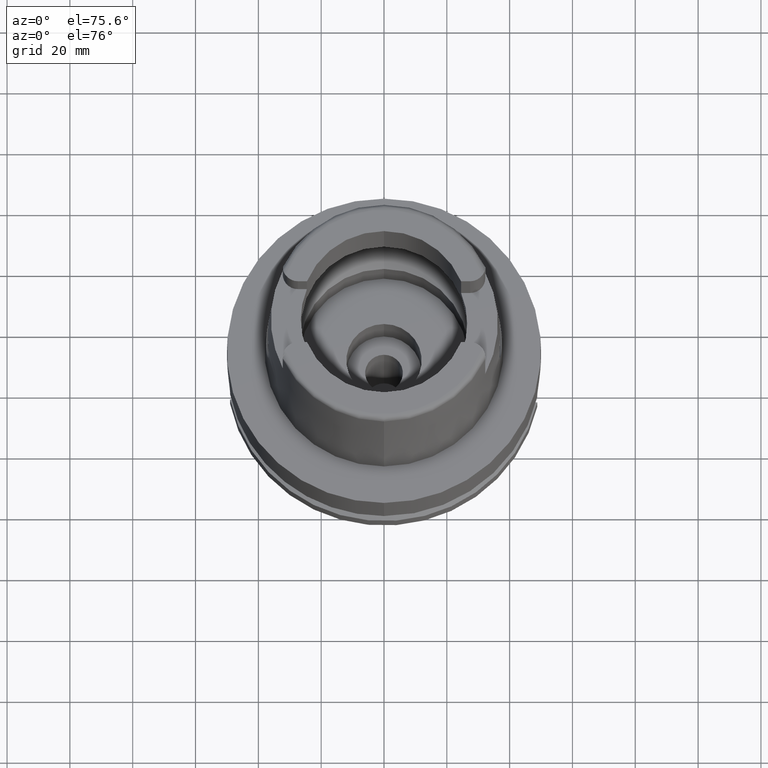
[diagram: clean part render]
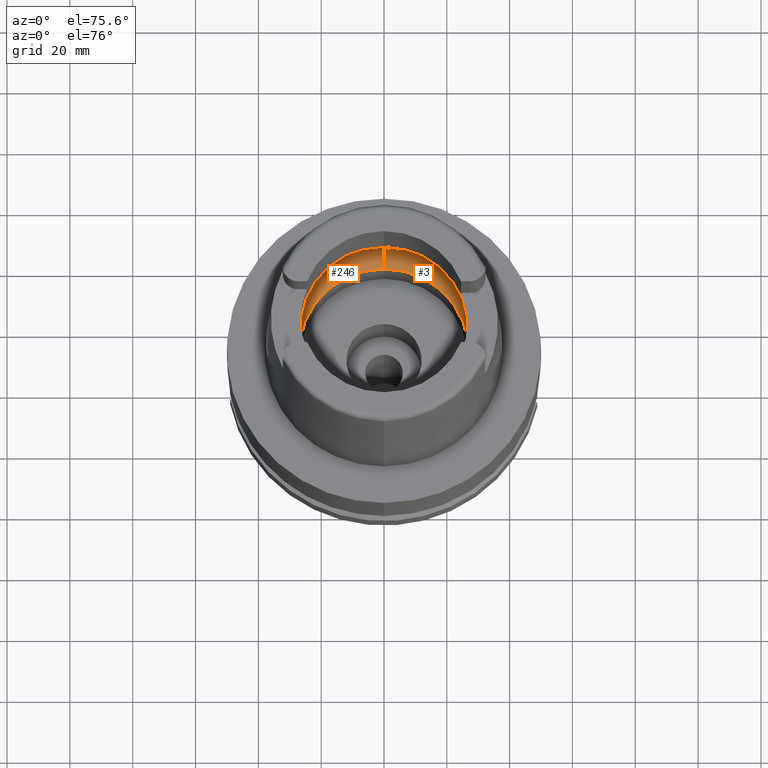
[diagram: same view with one multi-face feature highlighted, each face labeled with its STEP entity id]
A machine part, auxiliary view. The highlighted faces form ONE feature: a constant-radius fillet chain: 2 tangent blend faces with common blend radius 12 mm. The faces share edges in the B-rep.
Their STEP definitions:
[1] entity #246 (Torus):
#239 = CARTESIAN_POINT ( 'NONE',  ( -31.40918884336000616, -2.390158196043999705, 9.496624327025999790 ) ) ;
#246 = ADVANCED_FACE ( 'NONE', ( #5244 ), #1396, .F. ) ;
#343 = VERTEX_POINT ( 'NONE', #3645 ) ;
#354 = CARTESIAN_POINT ( 'NONE',  ( 0.0000000000000000000, -19.50000000000000000, 9.496624327025999790 ) ) ;
#380 = EDGE_CURVE ( 'NONE', #1174, #3795, #5281, .T. ) ;
#449 = B_SPLINE_CURVE_WITH_KNOTS ( 'NONE', 3,
 ( #5054, #2889, #1147, #1691, #5531, #3776 ),
 .UNSPECIFIED., .F., .F.,
 ( 4, 1, 1, 4 ),
 ( 0.0000000000000000000, 0.3333333333333000081, 0.6666666666667000474, 1.000000000000000000 ),
 .UNSPECIFIED. ) ;
#546 = EDGE_CURVE ( 'NONE', #1083, #1174, #4104, .T. ) ;
#823 = EDGE_CURVE ( 'NONE', #871, #3287, #866, .T. ) ;
#866 = CIRCLE ( 'NONE', #2570, 31.50000000000001421 ) ;
#871 = VERTEX_POINT ( 'NONE', #2329 ) ;
#927 = EDGE_CURVE ( 'NONE', #3795, #871, #449, .T. ) ;
#1083 = VERTEX_POINT ( 'NONE', #2585 ) ;
#1147 = CARTESIAN_POINT ( 'NONE',  ( -31.48416661469000033, 0.8216269012393999649, 9.037606318336999678 ) ) ;
#1174 = VERTEX_POINT ( 'NONE', #4737 ) ;
#1207 = ORIENTED_EDGE ( 'NONE', *, *, #927, .F. ) ;
#1364 = DIRECTION ( 'NONE',  ( 0.0000000000000000000, 0.0000000000000000000, 1.000000000000000000 ) ) ;
#1396 = TOROIDAL_SURFACE ( 'NONE', #2830, 19.50000000000000000, 12.00000000000000000 ) ;
#1513 = EDGE_CURVE ( 'NONE', #4987, #343, #4205, .T. ) ;
#1644 = CARTESIAN_POINT ( 'NONE',  ( 0.0000000000000000000, 26.89999999999999858, 0.04993178413041000213 ) ) ;
#1691 = CARTESIAN_POINT ( 'NONE',  ( -31.45843209623000547, 1.626127188330999784, 9.205189758010000389 ) ) ;
#1883 = CARTESIAN_POINT ( 'NONE',  ( -31.48971910754000447, 0.0000000000000000000, 9.000000000000000000 ) ) ;
#1918 = DIRECTION ( 'NONE',  ( 0.0000000000000000000, 1.000000000000000000, 0.0000000000000000000 ) ) ;
#1956 = CARTESIAN_POINT ( 'NONE',  ( -31.48971910754000447, 0.0000000000000000000, 9.000000000000000000 ) ) ;
#2008 = CARTESIAN_POINT ( 'NONE',  ( -31.42817545703999826, -2.140654152532999621, 9.388262810390001434 ) ) ;
#2323 = CIRCLE ( 'NONE', #3128, 11.99999999999999822 ) ;
#2329 = CARTESIAN_POINT ( 'NONE',  ( -31.40918884336000616, 2.390158196043999705, 9.496624327025999790 ) ) ;
#2356 = ORIENTED_EDGE ( 'NONE', *, *, #823, .F. ) ;
#2382 = ORIENTED_EDGE ( 'NONE', *, *, #2643, .T. ) ;
#2423 = EDGE_LOOP ( 'NONE', ( #3441, #4072, #4581, #2382, #2356, #1207, #2967 ) ) ;
#2494 = AXIS2_PLACEMENT_3D ( 'NONE', #4957, #3188, #1918 ) ;
#2550 = CARTESIAN_POINT ( 'NONE',  ( 0.0000000000000000000, 19.50000000000000000, 9.496624327025999790 ) ) ;
#2570 = AXIS2_PLACEMENT_3D ( 'NONE', #3260, #3705, #5443 ) ;
#2585 = CARTESIAN_POINT ( 'NONE',  ( 0.0000000000000000000, -31.50000000000000000, 9.496624327025999790 ) ) ;
#2643 = EDGE_CURVE ( 'NONE', #4987, #3287, #2323, .T. ) ;
#2830 = AXIS2_PLACEMENT_3D ( 'NONE', #4479, #1364, #5354 ) ;
#2889 = CARTESIAN_POINT ( 'NONE',  ( -31.48971910754000447, 0.2740813517951999900, 9.000000000000000000 ) ) ;
#2943 = DIRECTION ( 'NONE',  ( 1.000000000000000000, 0.0000000000000000000, 0.0000000000000000000 ) ) ;
#2967 = ORIENTED_EDGE ( 'NONE', *, *, #380, .F. ) ;
#2996 = CARTESIAN_POINT ( 'NONE',  ( 0.0000000000000000000, 0.0000000000000000000, 9.496624327025999790 ) ) ;
#3094 = EDGE_CURVE ( 'NONE', #343, #1083, #5266, .T. ) ;
#3108 = AXIS2_PLACEMENT_3D ( 'NONE', #2996, #4656, #3801 ) ;
#3128 = AXIS2_PLACEMENT_3D ( 'NONE', #2550, #2943, #4222 ) ;
#3188 = DIRECTION ( 'NONE',  ( 0.0000000000000000000, 0.0000000000000000000, 1.000000000000000000 ) ) ;
#3195 = CARTESIAN_POINT ( 'NONE',  ( -31.48416659375000037, -0.8216262390445000507, 9.037606438216000626 ) ) ;
#3224 = CARTESIAN_POINT ( 'NONE',  ( -31.48971910754000447, -0.2740811097498000448, 9.000000000000000000 ) ) ;
#3260 = CARTESIAN_POINT ( 'NONE',  ( 0.0000000000000000000, 0.0000000000000000000, 9.496624327025999790 ) ) ;
#3287 = VERTEX_POINT ( 'NONE', #4414 ) ;
#3441 = ORIENTED_EDGE ( 'NONE', *, *, #546, .F. ) ;
#3645 = CARTESIAN_POINT ( 'NONE',  ( 0.0000000000000000000, -26.89999999999999858, 0.04993178413040000319 ) ) ;
#3671 = DIRECTION ( 'NONE',  ( 0.0000000000000000000, -0.6166666666667049990, -0.7872243785746061429 ) ) ;
#3705 = DIRECTION ( 'NONE',  ( 0.0000000000000000000, 0.0000000000000000000, -1.000000000000000000 ) ) ;
#3776 = CARTESIAN_POINT ( 'NONE',  ( -31.40918884336000616, 2.390158196043999705, 9.496624327025999790 ) ) ;
#3795 = VERTEX_POINT ( 'NONE', #1883 ) ;
#3801 = DIRECTION ( 'NONE',  ( 0.0000000000000000000, -1.000000000000000000, 0.0000000000000000000 ) ) ;
#4072 = ORIENTED_EDGE ( 'NONE', *, *, #3094, .F. ) ;
#4104 = CIRCLE ( 'NONE', #3108, 31.50000000000000000 ) ;
#4129 = CARTESIAN_POINT ( 'NONE',  ( -31.45843235400999660, -1.626121130666000170, 9.205188134635001518 ) ) ;
#4205 = CIRCLE ( 'NONE', #2494, 26.89999999999999858 ) ;
#4222 = DIRECTION ( 'NONE',  ( 0.0000000000000000000, 0.6166666666667049990, -0.7872243785746061429 ) ) ;
#4414 = CARTESIAN_POINT ( 'NONE',  ( 0.0000000000000000000, 31.50000000000000000, 9.496624327025999790 ) ) ;
#4479 = CARTESIAN_POINT ( 'NONE',  ( 0.0000000000000000000, 0.0000000000000000000, 9.496624327025999790 ) ) ;
#4581 = ORIENTED_EDGE ( 'NONE', *, *, #1513, .F. ) ;
#4617 = DIRECTION ( 'NONE',  ( -1.000000000000000000, 0.0000000000000000000, 0.0000000000000000000 ) ) ;
#4656 = DIRECTION ( 'NONE',  ( 0.0000000000000000000, 0.0000000000000000000, -1.000000000000000000 ) ) ;
#4737 = CARTESIAN_POINT ( 'NONE',  ( -31.40918884336000616, -2.390158196043999705, 9.496624327025999790 ) ) ;
#4908 = AXIS2_PLACEMENT_3D ( 'NONE', #354, #4617, #3671 ) ;
#4957 = CARTESIAN_POINT ( 'NONE',  ( 0.0000000000000000000, 0.0000000000000000000, 0.04993178413040000319 ) ) ;
#4987 = VERTEX_POINT ( 'NONE', #1644 ) ;
#5054 = CARTESIAN_POINT ( 'NONE',  ( -31.48971910754000447, 0.0000000000000000000, 9.000000000000000000 ) ) ;
#5244 = FACE_OUTER_BOUND ( 'NONE', #2423, .T. ) ;
#5266 = CIRCLE ( 'NONE', #4908, 11.99999999999999822 ) ;
#5281 = B_SPLINE_CURVE_WITH_KNOTS ( 'NONE', 3,
 ( #239, #2008, #4129, #3195, #3224, #1956 ),
 .UNSPECIFIED., .F., .F.,
 ( 4, 1, 1, 4 ),
 ( 0.0000000000000000000, 0.3333333333333000081, 0.6666666666667000474, 1.000000000000000000 ),
 .UNSPECIFIED. ) ;
#5354 = DIRECTION ( 'NONE',  ( 0.0000000000000000000, 1.000000000000000000, 0.0000000000000000000 ) ) ;
#5443 = DIRECTION ( 'NONE',  ( -0.9971171061384286327, 0.07587803796966216541, 0.0000000000000000000 ) ) ;
#5531 = CARTESIAN_POINT ( 'NONE',  ( -31.42817526838999953, 2.140656631636999929, 9.388263887083001080 ) ) ;
[2] entity #3 (Torus):
#1 = ORIENTED_EDGE ( 'NONE', *, *, #3415, .F. ) ;
#3 = ADVANCED_FACE ( 'NONE', ( #2914 ), #670, .F. ) ;
#64 = EDGE_CURVE ( 'NONE', #3287, #4516, #4292, .T. ) ;
#77 = CARTESIAN_POINT ( 'NONE',  ( 0.0000000000000000000, 0.0000000000000000000, 0.04993178413041000213 ) ) ;
#85 = CARTESIAN_POINT ( 'NONE',  ( 31.40918884336000616, -2.390158196043999705, 9.496624327025999790 ) ) ;
#219 = CARTESIAN_POINT ( 'NONE',  ( 0.0000000000000000000, 0.0000000000000000000, 9.496624327025999790 ) ) ;
#343 = VERTEX_POINT ( 'NONE', #3645 ) ;
#354 = CARTESIAN_POINT ( 'NONE',  ( 0.0000000000000000000, -19.50000000000000000, 9.496624327025999790 ) ) ;
#497 = AXIS2_PLACEMENT_3D ( 'NONE', #665, #3627, #5396 ) ;
#665 = CARTESIAN_POINT ( 'NONE',  ( 0.0000000000000000000, 0.0000000000000000000, 9.496624327025999790 ) ) ;
#670 = TOROIDAL_SURFACE ( 'NONE', #860, 19.50000000000000000, 12.00000000000000000 ) ;
#860 = AXIS2_PLACEMENT_3D ( 'NONE', #219, #2756, #1631 ) ;
#897 = ORIENTED_EDGE ( 'NONE', *, *, #2370, .F. ) ;
#992 = CARTESIAN_POINT ( 'NONE',  ( 31.45843229728999901, -1.626122314408000147, 9.205188491873000700 ) ) ;
#1083 = VERTEX_POINT ( 'NONE', #2585 ) ;
#1284 = ORIENTED_EDGE ( 'NONE', *, *, #2643, .F. ) ;
#1378 = CARTESIAN_POINT ( 'NONE',  ( 31.48971910754000447, 0.2740808193429999928, 9.000000000000000000 ) ) ;
#1395 = CARTESIAN_POINT ( 'NONE',  ( 31.48971910754000447, 0.0000000000000000000, 9.000000000000000000 ) ) ;
#1418 = CARTESIAN_POINT ( 'NONE',  ( 31.48416657243999950, -0.8216274657312000462, 9.037606582851999804 ) ) ;
#1442 = CARTESIAN_POINT ( 'NONE',  ( 31.42817542026000410, -2.140654635826999996, 9.388263020288000860 ) ) ;
#1516 = ORIENTED_EDGE ( 'NONE', *, *, #3094, .T. ) ;
#1631 = DIRECTION ( 'NONE',  ( 0.0000000000000000000, 1.000000000000000000, 0.0000000000000000000 ) ) ;
#1644 = CARTESIAN_POINT ( 'NONE',  ( 0.0000000000000000000, 26.89999999999999858, 0.04993178413041000213 ) ) ;
#1745 = ORIENTED_EDGE ( 'NONE', *, *, #64, .F. ) ;
#1835 = CARTESIAN_POINT ( 'NONE',  ( 31.40918884336000616, 2.390158196043999705, 9.496624327025999790 ) ) ;
#2029 = EDGE_CURVE ( 'NONE', #4516, #2303, #4890, .T. ) ;
#2086 = EDGE_LOOP ( 'NONE', ( #4190, #1745, #1284, #897, #1516, #1, #3744 ) ) ;
#2289 = CARTESIAN_POINT ( 'NONE',  ( 31.48971910754000447, -0.2740816369240999806, 9.000000000000000000 ) ) ;
#2303 = VERTEX_POINT ( 'NONE', #1395 ) ;
#2323 = CIRCLE ( 'NONE', #3128, 11.99999999999999822 ) ;
#2332 = DIRECTION ( 'NONE',  ( 0.0000000000000000000, -1.000000000000000000, 0.0000000000000000000 ) ) ;
#2370 = EDGE_CURVE ( 'NONE', #343, #4987, #2504, .T. ) ;
#2483 = B_SPLINE_CURVE_WITH_KNOTS ( 'NONE', 3,
 ( #5298, #2289, #1418, #992, #1442, #2704 ),
 .UNSPECIFIED., .F., .F.,
 ( 4, 1, 1, 4 ),
 ( 0.0000000000000000000, 0.3333333333333000081, 0.6666666666667000474, 1.000000000000000000 ),
 .UNSPECIFIED. ) ;
#2504 = CIRCLE ( 'NONE', #3577, 26.89999999999999858 ) ;
#2550 = CARTESIAN_POINT ( 'NONE',  ( 0.0000000000000000000, 19.50000000000000000, 9.496624327025999790 ) ) ;
#2585 = CARTESIAN_POINT ( 'NONE',  ( 0.0000000000000000000, -31.50000000000000000, 9.496624327025999790 ) ) ;
#2643 = EDGE_CURVE ( 'NONE', #4987, #3287, #2323, .T. ) ;
#2704 = CARTESIAN_POINT ( 'NONE',  ( 31.40918884336000616, -2.390158196043999705, 9.496624327025999790 ) ) ;
#2756 = DIRECTION ( 'NONE',  ( 0.0000000000000000000, 0.0000000000000000000, 1.000000000000000000 ) ) ;
#2784 = CARTESIAN_POINT ( 'NONE',  ( 0.0000000000000000000, 0.0000000000000000000, 9.496624327025999790 ) ) ;
#2809 = DIRECTION ( 'NONE',  ( 0.0000000000000000000, 0.0000000000000000000, -1.000000000000000000 ) ) ;
#2914 = FACE_OUTER_BOUND ( 'NONE', #2086, .T. ) ;
#2943 = DIRECTION ( 'NONE',  ( 1.000000000000000000, 0.0000000000000000000, 0.0000000000000000000 ) ) ;
#2995 = AXIS2_PLACEMENT_3D ( 'NONE', #2784, #2809, #5002 ) ;
#3094 = EDGE_CURVE ( 'NONE', #343, #1083, #5266, .T. ) ;
#3100 = CARTESIAN_POINT ( 'NONE',  ( 31.48971910754000447, 0.0000000000000000000, 9.000000000000000000 ) ) ;
#3128 = AXIS2_PLACEMENT_3D ( 'NONE', #2550, #2943, #4222 ) ;
#3215 = CARTESIAN_POINT ( 'NONE',  ( 31.48416663622000300, 0.8216256622720000680, 9.037606172252001357 ) ) ;
#3287 = VERTEX_POINT ( 'NONE', #4414 ) ;
#3415 = EDGE_CURVE ( 'NONE', #5137, #1083, #3993, .T. ) ;
#3577 = AXIS2_PLACEMENT_3D ( 'NONE', #77, #4485, #2332 ) ;
#3627 = DIRECTION ( 'NONE',  ( 0.0000000000000000000, 0.0000000000000000000, -1.000000000000000000 ) ) ;
#3631 = CARTESIAN_POINT ( 'NONE',  ( 31.42817530553000083, 2.140656143518000487, 9.388263675090000149 ) ) ;
#3645 = CARTESIAN_POINT ( 'NONE',  ( 0.0000000000000000000, -26.89999999999999858, 0.04993178413040000319 ) ) ;
#3671 = DIRECTION ( 'NONE',  ( 0.0000000000000000000, -0.6166666666667049990, -0.7872243785746061429 ) ) ;
#3744 = ORIENTED_EDGE ( 'NONE', *, *, #4415, .F. ) ;
#3993 = CIRCLE ( 'NONE', #2995, 31.49999999999998934 ) ;
#4190 = ORIENTED_EDGE ( 'NONE', *, *, #2029, .F. ) ;
#4222 = DIRECTION ( 'NONE',  ( 0.0000000000000000000, 0.6166666666667049990, -0.7872243785746061429 ) ) ;
#4292 = CIRCLE ( 'NONE', #497, 31.50000000000000000 ) ;
#4414 = CARTESIAN_POINT ( 'NONE',  ( 0.0000000000000000000, 31.50000000000000000, 9.496624327025999790 ) ) ;
#4415 = EDGE_CURVE ( 'NONE', #2303, #5137, #2483, .T. ) ;
#4485 = DIRECTION ( 'NONE',  ( 0.0000000000000000000, 0.0000000000000000000, 1.000000000000000000 ) ) ;
#4516 = VERTEX_POINT ( 'NONE', #4899 ) ;
#4617 = DIRECTION ( 'NONE',  ( -1.000000000000000000, 0.0000000000000000000, 0.0000000000000000000 ) ) ;
#4890 = B_SPLINE_CURVE_WITH_KNOTS ( 'NONE', 3,
 ( #1835, #3631, #5370, #3215, #1378, #3100 ),
 .UNSPECIFIED., .F., .F.,
 ( 4, 1, 1, 4 ),
 ( 0.0000000000000000000, 0.3333333333333000081, 0.6666666666667000474, 1.000000000000000000 ),
 .UNSPECIFIED. ) ;
#4899 = CARTESIAN_POINT ( 'NONE',  ( 31.40918884336000616, 2.390158196043999705, 9.496624327025999790 ) ) ;
#4908 = AXIS2_PLACEMENT_3D ( 'NONE', #354, #4617, #3671 ) ;
#4987 = VERTEX_POINT ( 'NONE', #1644 ) ;
#5002 = DIRECTION ( 'NONE',  ( 0.9971171061384295209, -0.07587803796965221503, 0.0000000000000000000 ) ) ;
#5137 = VERTEX_POINT ( 'NONE', #85 ) ;
#5266 = CIRCLE ( 'NONE', #4908, 11.99999999999999822 ) ;
#5298 = CARTESIAN_POINT ( 'NONE',  ( 31.48971910754000447, 0.0000000000000000000, 9.000000000000000000 ) ) ;
#5370 = CARTESIAN_POINT ( 'NONE',  ( 31.45843215351000310, 1.626125992769999806, 9.205189397203000112 ) ) ;
#5396 = DIRECTION ( 'NONE',  ( 0.0000000000000000000, 1.000000000000000000, 0.0000000000000000000 ) ) ;